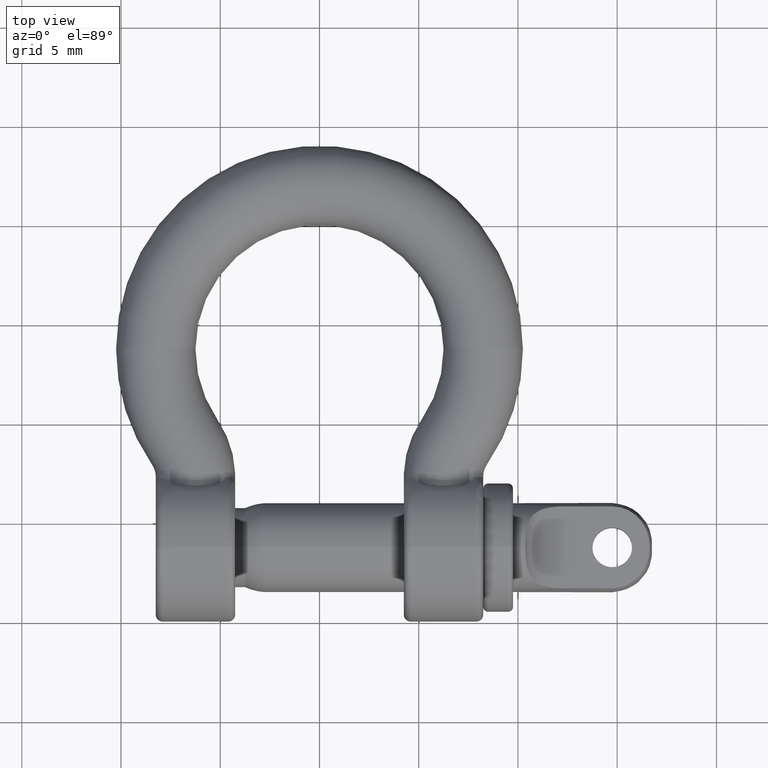
[diagram: clean part render]
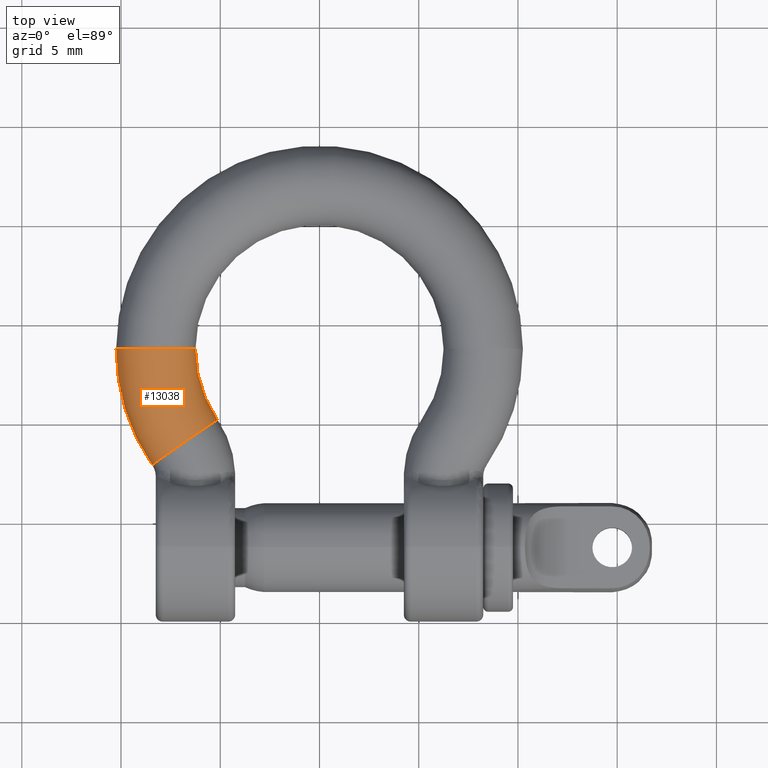
[diagram: same view with one face highlighted and labeled with its STEP entity id]
A machine part, top view. The second image highlights one B-rep face of the part: STEP entity #13038.
In plain terms, the highlighted toroidal blend (fillet) surface has major radius 8.25 mm and minor (blend) radius 2 mm.
Its self-contained STEP definition (entity closure, byte-faithful):
#80 = TOROIDAL_SURFACE ( 'NONE', #15487, 8.250000000000000000, 2.000000000000000400 ) ;
#622 = CARTESIAN_POINT ( 'NONE',  ( -10.25000000000000000, 13.75000000000000200, 0.0000000000000000000 ) ) ;
#834 = DIRECTION ( 'NONE',  ( 0.0000000000000000000, -1.000000000000000000, 0.0000000000000000000 ) ) ;
#887 = CIRCLE ( 'NONE', #13205, 2.000000000000000400 ) ;
#1183 = VERTEX_POINT ( 'NONE', #622 ) ;
#1329 = DIRECTION ( 'NONE',  ( -0.0000000000000000000, -0.0000000000000000000, -1.000000000000000000 ) ) ;
#1892 = DIRECTION ( 'NONE',  ( -1.000000000000000000, 0.0000000000000000000, 0.0000000000000000000 ) ) ;
#2699 = ORIENTED_EDGE ( 'NONE', *, *, #10725, .T. ) ;
#2723 = CARTESIAN_POINT ( 'NONE',  ( 0.0000000000000000000, 13.75000000000000200, 0.0000000000000000000 ) ) ;
#3291 = CARTESIAN_POINT ( 'NONE',  ( 0.0000000000000000000, 13.75000000000000200, 0.0000000000000000000 ) ) ;
#3388 = DIRECTION ( 'NONE',  ( -0.0000000000000000000, -0.0000000000000000000, -1.000000000000000000 ) ) ;
#3595 = CARTESIAN_POINT ( 'NONE',  ( -6.250000000000000000, 13.75000000000000200, 2.449293598294707400E-016 ) ) ;
#4023 = DIRECTION ( 'NONE',  ( -0.5691665988829202000, 0.8222222222222220800, 0.0000000000000000000 ) ) ;
#4038 = FACE_OUTER_BOUND ( 'NONE', #11202, .T. ) ;
#4177 = DIRECTION ( 'NONE',  ( 0.0000000000000000000, 0.0000000000000000000, 1.000000000000000000 ) ) ;
#5098 = ORIENTED_EDGE ( 'NONE', *, *, #15440, .F. ) ;
#5339 = DIRECTION ( 'NONE',  ( -1.000000000000000000, 0.0000000000000000000, 0.0000000000000000000 ) ) ;
#5396 = DIRECTION ( 'NONE',  ( -0.0000000000000000000, -0.0000000000000000000, -1.000000000000000000 ) ) ;
#5763 = AXIS2_PLACEMENT_3D ( 'NONE', #7088, #834, #13393 ) ;
#6651 = EDGE_CURVE ( 'NONE', #7675, #10145, #887, .T. ) ;
#6700 = CIRCLE ( 'NONE', #5763, 2.000000000000000400 ) ;
#6723 = CARTESIAN_POINT ( 'NONE',  ( -6.783333333333333200, 9.054375559215913000, 0.0000000000000000000 ) ) ;
#7088 = CARTESIAN_POINT ( 'NONE',  ( -8.250000000000000000, 13.75000000000000200, 0.0000000000000000000 ) ) ;
#7629 = CARTESIAN_POINT ( 'NONE',  ( 0.0000000000000000000, 13.75000000000000200, 2.449293598294706900E-016 ) ) ;
#7675 = VERTEX_POINT ( 'NONE', #14485 ) ;
#8186 = DIRECTION ( 'NONE',  ( -1.000000000000000000, 0.0000000000000000000, 0.0000000000000000000 ) ) ;
#9037 = CIRCLE ( 'NONE', #16110, 6.250000000000000000 ) ;
#9618 = VERTEX_POINT ( 'NONE', #3595 ) ;
#10145 = VERTEX_POINT ( 'NONE', #10178 ) ;
#10178 = CARTESIAN_POINT ( 'NONE',  ( -5.138888888888889300, 10.19270875698175300, 2.449293598294706900E-016 ) ) ;
#10447 = EDGE_CURVE ( 'NONE', #9618, #1183, #6700, .T. ) ;
#10725 = EDGE_CURVE ( 'NONE', #10145, #9618, #9037, .T. ) ;
#11202 = EDGE_LOOP ( 'NONE', ( #5098, #15639, #2699, #14457 ) ) ;
#13038 = ADVANCED_FACE ( 'NONE', ( #4038 ), #80, .T. ) ;
#13205 = AXIS2_PLACEMENT_3D ( 'NONE', #6723, #4023, #4177 ) ;
#13393 = DIRECTION ( 'NONE',  ( 0.0000000000000000000, 0.0000000000000000000, -1.000000000000000000 ) ) ;
#13947 = AXIS2_PLACEMENT_3D ( 'NONE', #2723, #5396, #5339 ) ;
#14457 = ORIENTED_EDGE ( 'NONE', *, *, #10447, .T. ) ;
#14485 = CARTESIAN_POINT ( 'NONE',  ( -8.427777777777777100, 7.916042361450072600, 0.0000000000000000000 ) ) ;
#15440 = EDGE_CURVE ( 'NONE', #7675, #1183, #15820, .T. ) ;
#15487 = AXIS2_PLACEMENT_3D ( 'NONE', #3291, #3388, #1892 ) ;
#15639 = ORIENTED_EDGE ( 'NONE', *, *, #6651, .T. ) ;
#15820 = CIRCLE ( 'NONE', #13947, 10.25000000000000000 ) ;
#16110 = AXIS2_PLACEMENT_3D ( 'NONE', #7629, #1329, #8186 ) ;